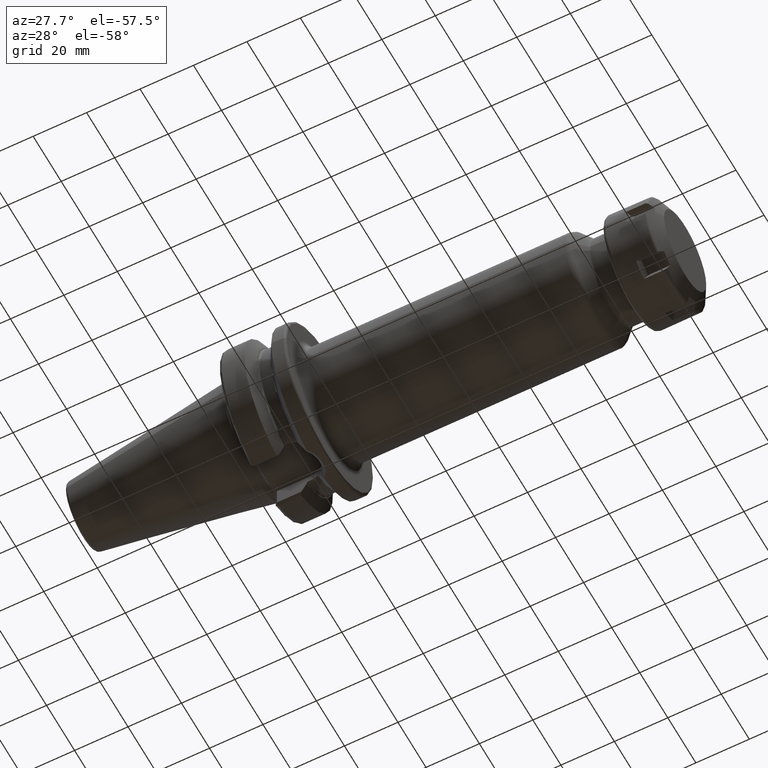
[diagram: clean part render]
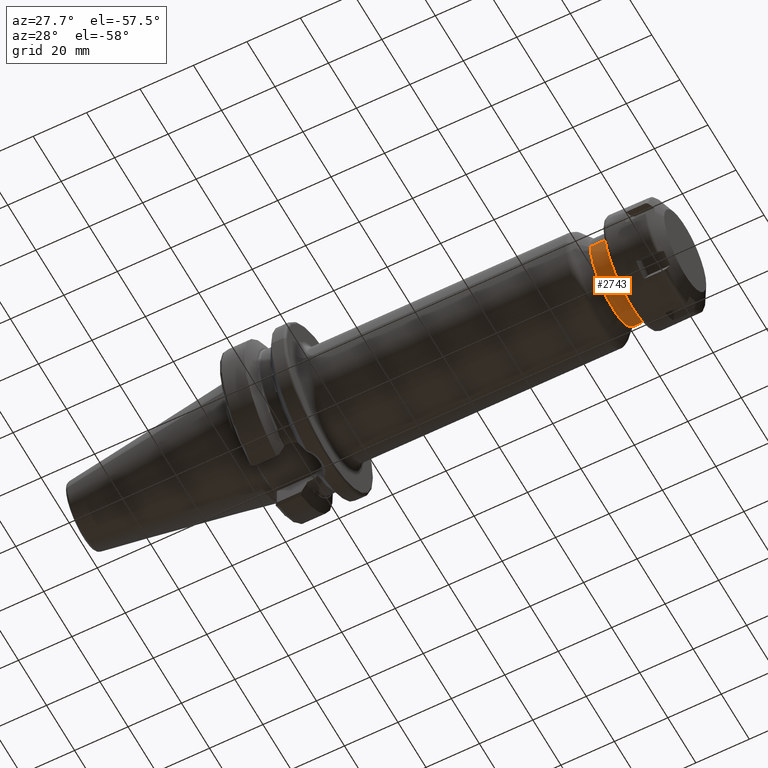
[diagram: same view with one face highlighted and labeled with its STEP entity id]
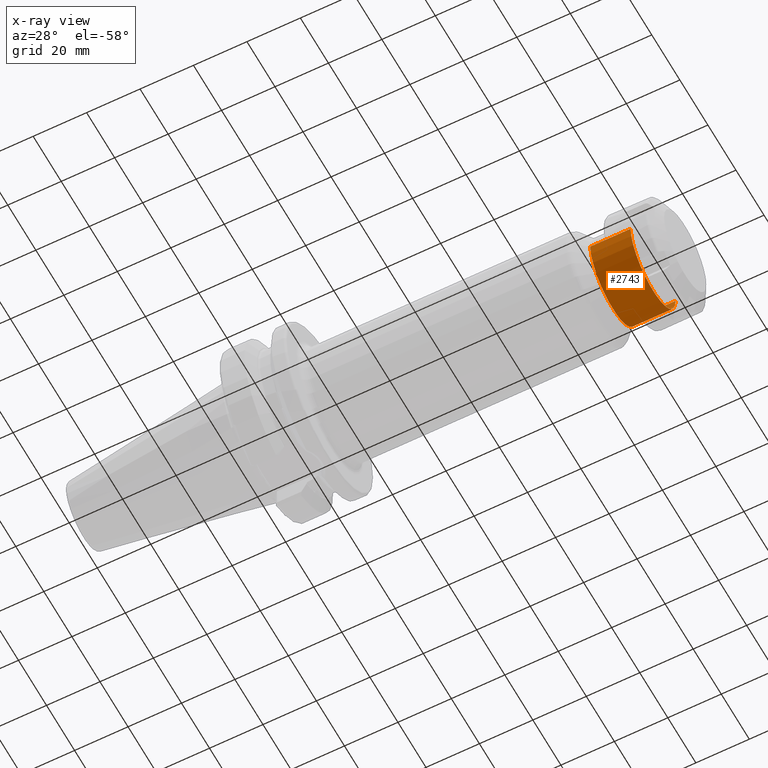
[diagram: x-ray of the same camera — body ghosted, the highlighted face saturated]
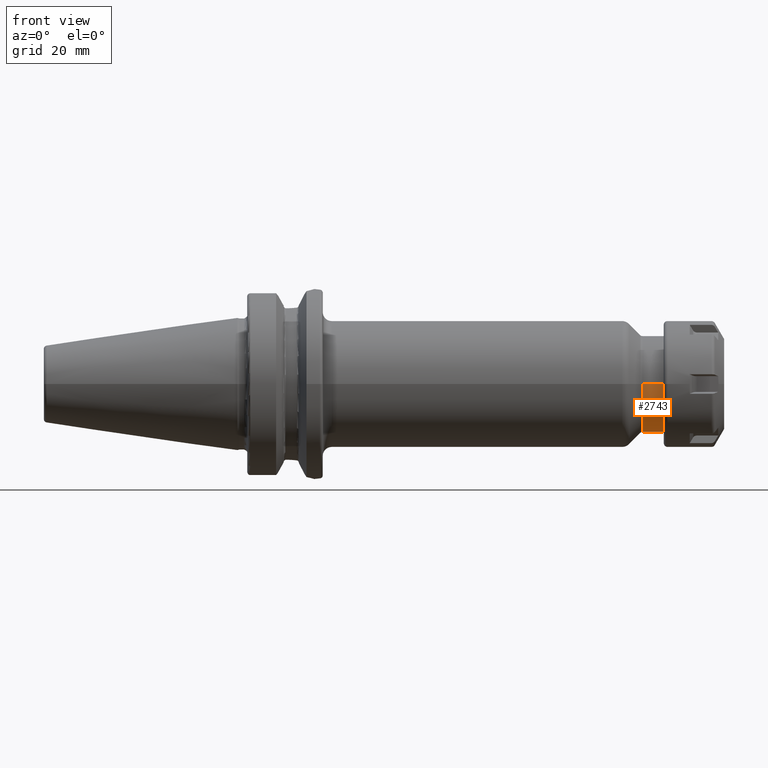
[diagram: same view with one face highlighted and labeled with its STEP entity id]
A machine part, auxiliary view. The second image highlights one B-rep face of the part: STEP entity #2743.
The next image is the same camera in x-ray: the body ghosted, the highlighted face saturated — about 0% of this face is hidden behind the body in this view.
A second angle (front view) of the same face is appended — the face is thin or edge-on in the first view.
In plain terms, the highlighted cylindrical surface (partial cylindrical patch) has radius 16 mm, axis along (1, 0, 0).
Its self-contained STEP definition (entity closure, byte-faithful):
#932=CARTESIAN_POINT('',(1.329142135624E2,0.E0,0.E0));
#933=DIRECTION('',(1.E0,0.E0,0.E0));
#934=DIRECTION('',(0.E0,-1.E0,0.E0));
#935=AXIS2_PLACEMENT_3D('',#932,#933,#934);
#937=DIRECTION('',(-1.E0,0.E0,1.323750821043E-13));
#938=VECTOR('',#937,1.508578643763E1);
#939=CARTESIAN_POINT('',(1.48E2,-1.6E1,0.E0));
#940=LINE('',#939,#938);
#941=CARTESIAN_POINT('',(1.48E2,0.E0,0.E0));
#942=DIRECTION('',(-1.E0,0.E0,0.E0));
#943=DIRECTION('',(0.E0,1.E0,0.E0));
#944=AXIS2_PLACEMENT_3D('',#941,#942,#943);
#946=DIRECTION('',(-1.E0,0.E0,-1.325234641587E-13));
#947=VECTOR('',#946,1.508578643763E1);
#948=CARTESIAN_POINT('',(1.48E2,1.6E1,0.E0));
#949=LINE('',#948,#947);
#1449=CARTESIAN_POINT('',(1.48E2,1.6E1,0.E0));
#1450=CARTESIAN_POINT('',(1.48E2,-1.6E1,0.E0));
#1451=VERTEX_POINT('',#1449);
#1452=VERTEX_POINT('',#1450);
#1477=CARTESIAN_POINT('',(1.329142135624E2,-1.6E1,0.E0));
#1478=CARTESIAN_POINT('',(1.329142135624E2,1.6E1,0.E0));
#1479=VERTEX_POINT('',#1477);
#1480=VERTEX_POINT('',#1478);
#2729=CARTESIAN_POINT('',(2.095E1,0.E0,0.E0));
#2730=DIRECTION('',(1.E0,0.E0,0.E0));
#2731=DIRECTION('',(0.E0,-1.E0,0.E0));
#2732=AXIS2_PLACEMENT_3D('',#2729,#2730,#2731);
#2733=CYLINDRICAL_SURFACE('',#2732,1.6E1);
#2734=ORIENTED_EDGE('',*,*,#2723,.F.);
#2736=ORIENTED_EDGE('',*,*,#2735,.F.);
#2738=ORIENTED_EDGE('',*,*,#2737,.F.);
#2740=ORIENTED_EDGE('',*,*,#2739,.T.);
#2741=EDGE_LOOP('',(#2734,#2736,#2738,#2740));
#2742=FACE_OUTER_BOUND('',#2741,.F.);
#2743=ADVANCED_FACE('',(#2742),#2733,.T.);
#936=CIRCLE('',#935,1.6E1);
#945=CIRCLE('',#944,1.6E1);
#2723=EDGE_CURVE('',#1479,#1480,#936,.T.);
#2735=EDGE_CURVE('',#1452,#1479,#940,.T.);
#2737=EDGE_CURVE('',#1451,#1452,#945,.T.);
#2739=EDGE_CURVE('',#1451,#1480,#949,.T.);